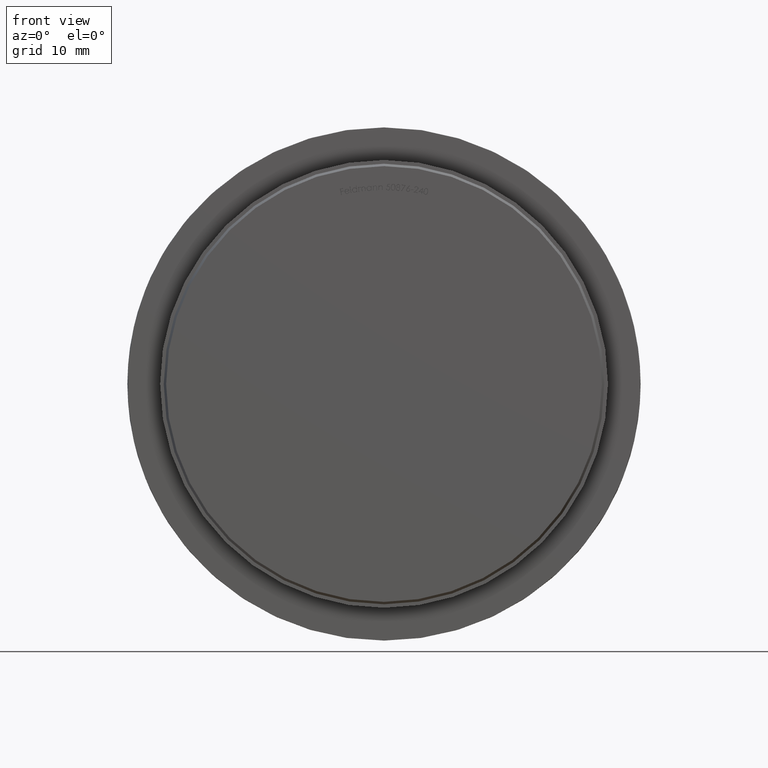
[diagram: clean part render]
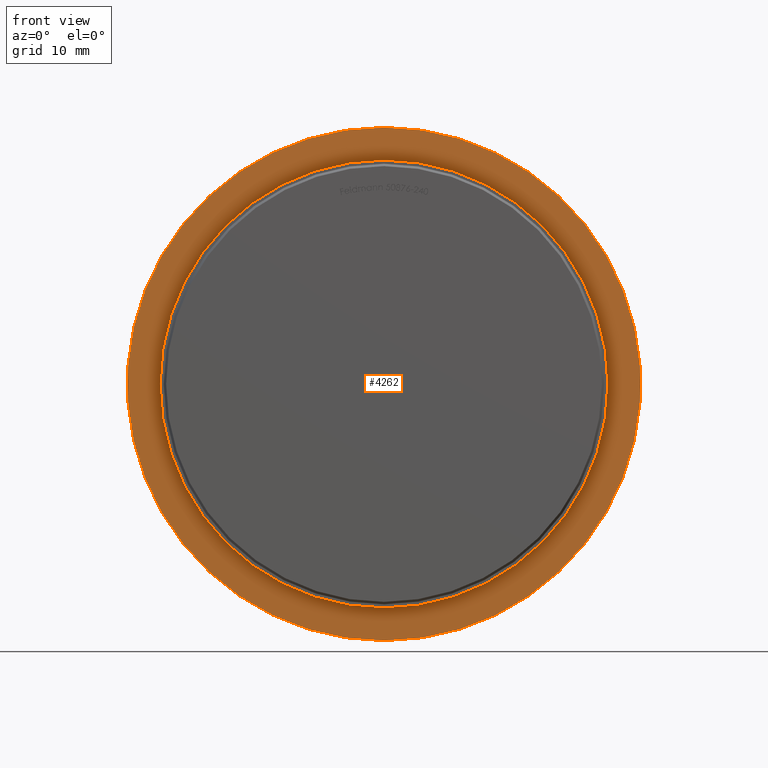
[diagram: same view with one face highlighted and labeled with its STEP entity id]
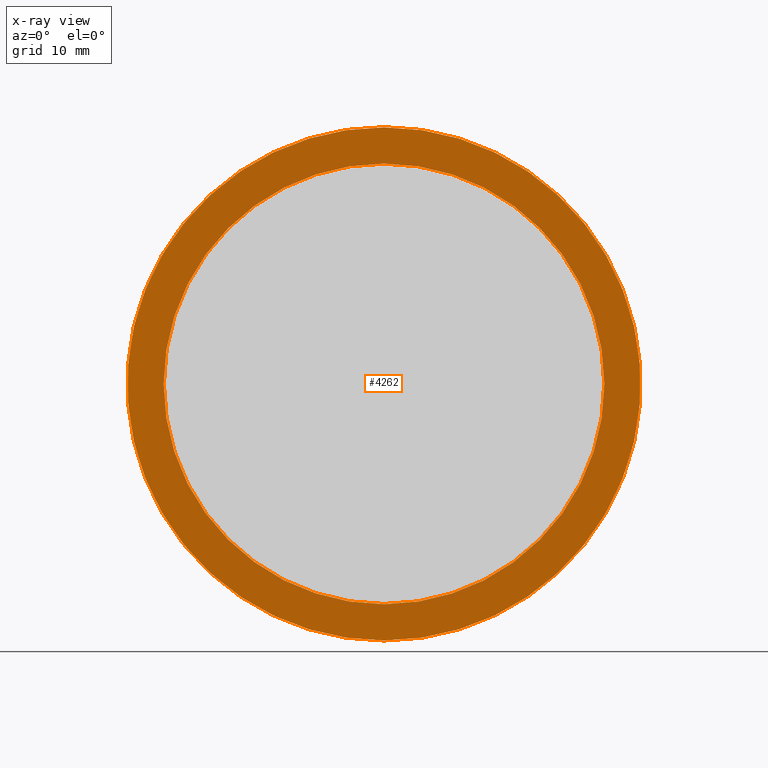
[diagram: x-ray of the same camera — body ghosted, the highlighted face saturated]
A machine part, front view. The second image highlights one B-rep face of the part: STEP entity #4262.
The next image is the same camera in x-ray: the body ghosted, the highlighted face saturated — about 0% of this face is hidden behind the body in this view.
In plain terms, the highlighted planar face has unit normal (0, -1, 0).
Its self-contained STEP definition (entity closure, byte-faithful):
#680 = DIRECTION ( 'NONE',  ( 0.0000000000000000000, -0.0000000000000000000, -1.000000000000000000 ) ) ;
#851 = EDGE_LOOP ( 'NONE', ( #12477, #5348 ) ) ;
#1005 = CARTESIAN_POINT ( 'NONE',  ( 2.596251214192388800E-015, 4.500000000000004400, -21.19999999999999900 ) ) ;
#1364 = ORIENTED_EDGE ( 'NONE', *, *, #5449, .T. ) ;
#1818 = DIRECTION ( 'NONE',  ( 0.0000000000000000000, 0.0000000000000000000, 1.000000000000000000 ) ) ;
#1938 = AXIS2_PLACEMENT_3D ( 'NONE', #6801, #2758, #1818 ) ;
#1967 = EDGE_CURVE ( 'NONE', #2741, #2731, #4959, .T. ) ;
#2400 = ORIENTED_EDGE ( 'NONE', *, *, #8292, .T. ) ;
#2731 = VERTEX_POINT ( 'NONE', #1005 ) ;
#2741 = VERTEX_POINT ( 'NONE', #12214 ) ;
#2758 = DIRECTION ( 'NONE',  ( -0.0000000000000000000, 1.000000000000000000, -0.0000000000000000000 ) ) ;
#2933 = DIRECTION ( 'NONE',  ( 0.0000000000000000000, 1.000000000000000000, 0.0000000000000000000 ) ) ;
#2996 = FACE_BOUND ( 'NONE', #11719, .T. ) ;
#3437 = PLANE ( 'NONE',  #5255 ) ;
#3925 = CARTESIAN_POINT ( 'NONE',  ( 0.0000000000000000000, 4.500000000000000900, -18.19999999999999900 ) ) ;
#4262 = ADVANCED_FACE ( 'NONE', ( #2996, #4583 ), #3437, .T. ) ;
#4457 = VERTEX_POINT ( 'NONE', #3925 ) ;
#4583 = FACE_OUTER_BOUND ( 'NONE', #851, .T. ) ;
#4882 = CIRCLE ( 'NONE', #12453, 18.19999999999999900 ) ;
#4959 = CIRCLE ( 'NONE', #1938, 21.19999999999999900 ) ;
#5070 = CARTESIAN_POINT ( 'NONE',  ( 0.0000000000000000000, 4.500000000000004400, 0.0000000000000000000 ) ) ;
#5255 = AXIS2_PLACEMENT_3D ( 'NONE', #6556, #12650, #680 ) ;
#5348 = ORIENTED_EDGE ( 'NONE', *, *, #9524, .F. ) ;
#5449 = EDGE_CURVE ( 'NONE', #4457, #6655, #7072, .T. ) ;
#5843 = CIRCLE ( 'NONE', #10033, 21.19999999999999900 ) ;
#6093 = DIRECTION ( 'NONE',  ( -0.0000000000000000000, 1.000000000000000000, -0.0000000000000000000 ) ) ;
#6556 = CARTESIAN_POINT ( 'NONE',  ( -9.205490143744848900E-016, 4.500000000000002700, 0.0000000000000000000 ) ) ;
#6655 = VERTEX_POINT ( 'NONE', #12603 ) ;
#6801 = CARTESIAN_POINT ( 'NONE',  ( 0.0000000000000000000, 4.500000000000004400, 0.0000000000000000000 ) ) ;
#6804 = CARTESIAN_POINT ( 'NONE',  ( 0.0000000000000000000, 4.500000000000000900, 0.0000000000000000000 ) ) ;
#6846 = DIRECTION ( 'NONE',  ( 0.0000000000000000000, 0.0000000000000000000, 1.000000000000000000 ) ) ;
#7072 = CIRCLE ( 'NONE', #9172, 18.19999999999999900 ) ;
#7508 = DIRECTION ( 'NONE',  ( 0.0000000000000000000, 0.0000000000000000000, 1.000000000000000000 ) ) ;
#8292 = EDGE_CURVE ( 'NONE', #6655, #4457, #4882, .T. ) ;
#8654 = DIRECTION ( 'NONE',  ( 0.0000000000000000000, 1.000000000000000000, 0.0000000000000000000 ) ) ;
#9172 = AXIS2_PLACEMENT_3D ( 'NONE', #6804, #2933, #6846 ) ;
#9524 = EDGE_CURVE ( 'NONE', #2731, #2741, #5843, .T. ) ;
#10033 = AXIS2_PLACEMENT_3D ( 'NONE', #5070, #6093, #13274 ) ;
#11650 = CARTESIAN_POINT ( 'NONE',  ( 0.0000000000000000000, 4.500000000000000900, 0.0000000000000000000 ) ) ;
#11719 = EDGE_LOOP ( 'NONE', ( #1364, #2400 ) ) ;
#12214 = CARTESIAN_POINT ( 'NONE',  ( 0.0000000000000000000, 4.500000000000004400, 21.19999999999999900 ) ) ;
#12453 = AXIS2_PLACEMENT_3D ( 'NONE', #11650, #8654, #7508 ) ;
#12477 = ORIENTED_EDGE ( 'NONE', *, *, #1967, .F. ) ;
#12603 = CARTESIAN_POINT ( 'NONE',  ( 2.228857174448182900E-015, 4.500000000000000900, 18.19999999999999900 ) ) ;
#12650 = DIRECTION ( 'NONE',  ( 0.0000000000000000000, -1.000000000000000000, 0.0000000000000000000 ) ) ;
#13274 = DIRECTION ( 'NONE',  ( 0.0000000000000000000, 0.0000000000000000000, 1.000000000000000000 ) ) ;